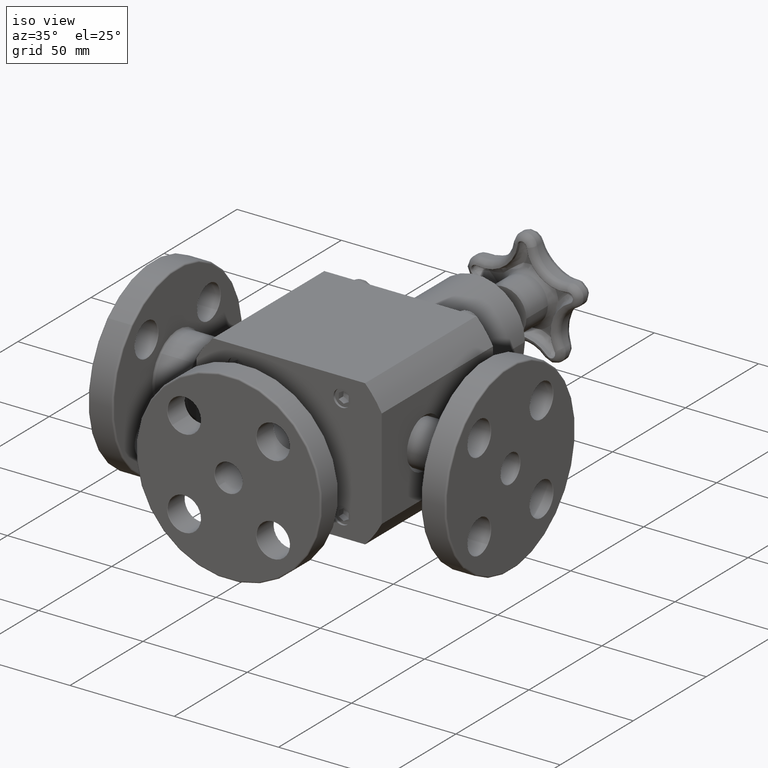
[diagram: clean part render]
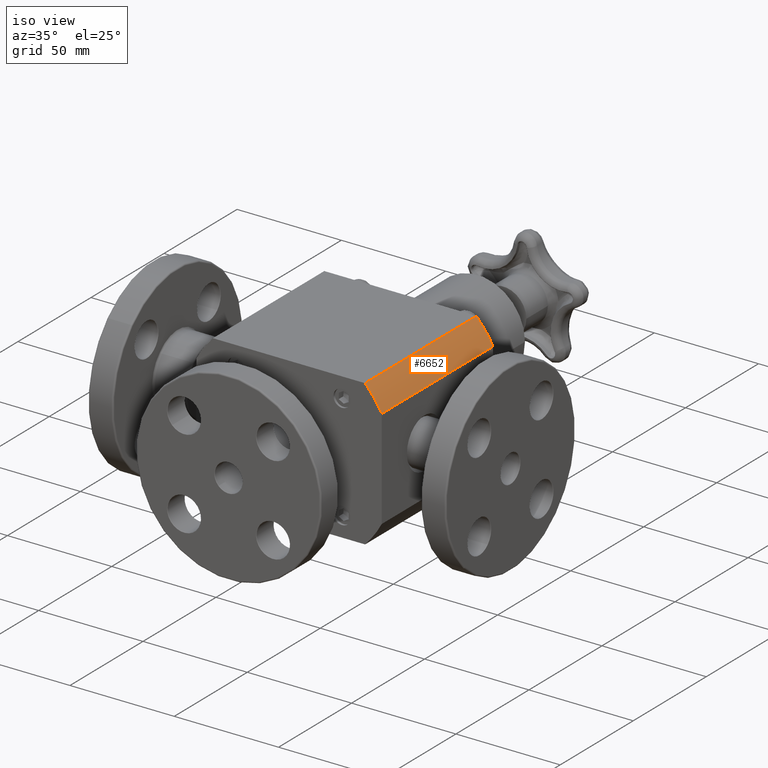
[diagram: same view with one face highlighted and labeled with its STEP entity id]
A machine part, iso view. The second image highlights one B-rep face of the part: STEP entity #6652.
In plain terms, the highlighted cylindrical surface (partial cylindrical patch) has radius 50.4825 mm, axis along (-0, 1, 0).
Its self-contained STEP definition (entity closure, byte-faithful):
#6145=CARTESIAN_POINT('',(1.435106703349964,3.000000000000001,1.374999999999999));
#6146=VERTEX_POINT('',#6145);
#6153=CARTESIAN_POINT('',(1.749999999999999,3.000000000000002,0.942155109310564));
#6154=VERTEX_POINT('',#6153);
#6155=CARTESIAN_POINT('',(-1.110865E-015,3.000000000000000,-5.510831E-017));
#6156=DIRECTION('',(0.0,-1.0,0.0));
#6157=DIRECTION('',(1.0,0.0,0.0));
#6158=AXIS2_PLACEMENT_3D('',#6155,#6156,#6157);
#6159=CIRCLE('',#6158,1.987500000000001);
#6160=EDGE_CURVE('',#6154,#6146,#6159,.T.);
#6357=CARTESIAN_POINT('',(1.750000000000000,6.041433E-016,0.942155109310564));
#6358=VERTEX_POINT('',#6357);
#6359=CARTESIAN_POINT('',(1.750000000000000,6.041433E-016,0.942155109310564));
#6360=DIRECTION('',(0.0,1.0,0.0));
#6361=VECTOR('',#6360,3.000000000000001);
#6362=LINE('',#6359,#6361);
#6363=EDGE_CURVE('',#6358,#6154,#6362,.T.);
#6485=CARTESIAN_POINT('',(1.435106703349963,3.227068E-016,1.375000000000000));
#6486=VERTEX_POINT('',#6485);
#6487=CARTESIAN_POINT('',(0.0,0.0,0.0));
#6488=DIRECTION('',(0.0,1.0,0.0));
#6489=DIRECTION('',(1.0,0.0,0.0));
#6490=AXIS2_PLACEMENT_3D('',#6487,#6488,#6489);
#6491=CIRCLE('',#6490,1.987500000000000);
#6492=EDGE_CURVE('',#6486,#6358,#6491,.T.);
#6573=CARTESIAN_POINT('',(1.435106703349963,3.227068E-016,1.375000000000000));
#6574=DIRECTION('',(0.0,1.0,0.0));
#6575=VECTOR('',#6574,3.000000000000001);
#6576=LINE('',#6573,#6575);
#6577=EDGE_CURVE('',#6486,#6146,#6576,.T.);
#6641=CARTESIAN_POINT('',(0.0,0.0,0.0));
#6642=DIRECTION('',(-4.996004E-016,1.0,2.867440E-016));
#6643=DIRECTION('',(1.0,0.0,0.0));
#6644=AXIS2_PLACEMENT_3D('',#6641,#6642,#6643);
#6645=CYLINDRICAL_SURFACE('',#6644,1.987500000000000);
#6646=ORIENTED_EDGE('',*,*,#6577,.F.);
#6647=ORIENTED_EDGE('',*,*,#6492,.T.);
#6648=ORIENTED_EDGE('',*,*,#6363,.T.);
#6649=ORIENTED_EDGE('',*,*,#6160,.T.);
#6650=EDGE_LOOP('',(#6646,#6647,#6648,#6649));
#6651=FACE_OUTER_BOUND('',#6650,.T.);
#6652=ADVANCED_FACE('',(#6651),#6645,.T.);